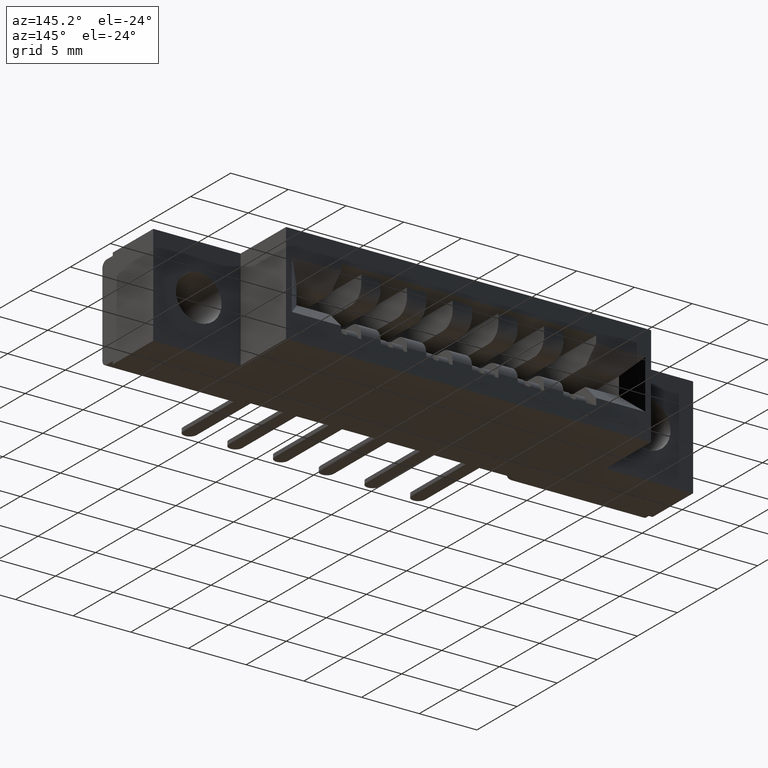
[diagram: clean part render]
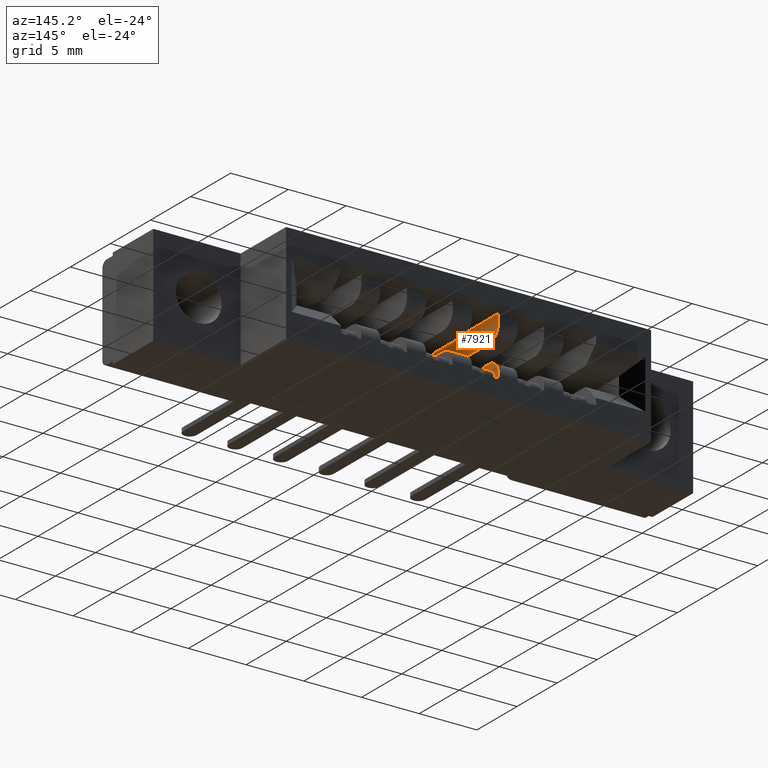
[diagram: same view with one face highlighted and labeled with its STEP entity id]
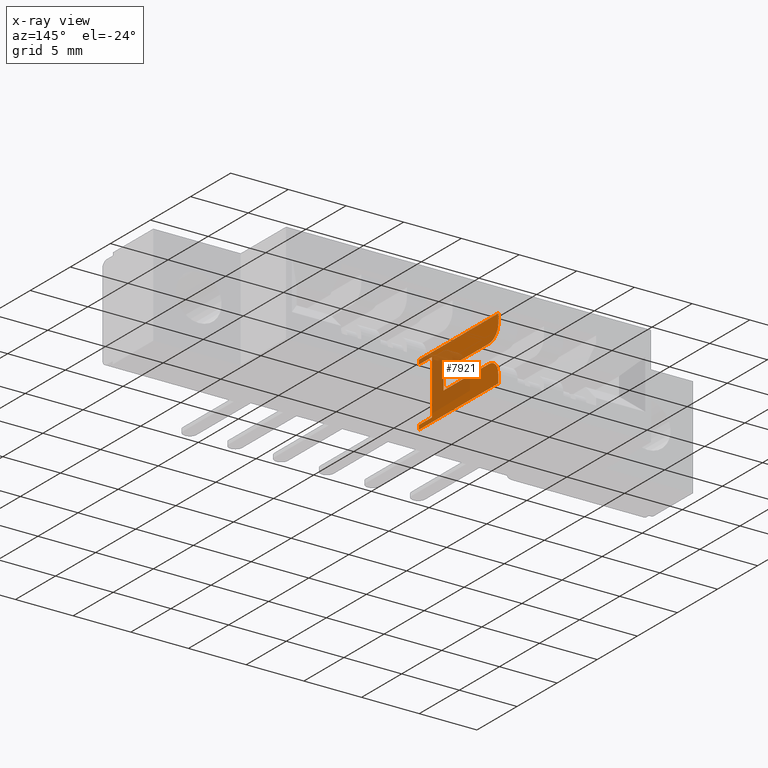
[diagram: x-ray of the same camera — body ghosted, the highlighted face saturated]
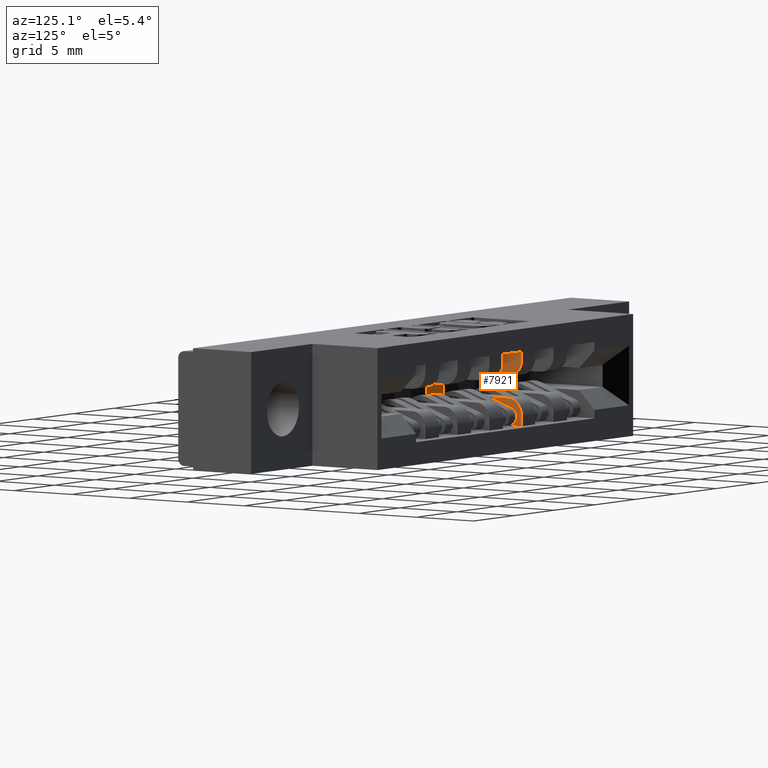
[diagram: same view with one face highlighted and labeled with its STEP entity id]
A machine part, auxiliary view. The second image highlights one B-rep face of the part: STEP entity #7921.
The next image is the same camera in x-ray: the body ghosted, the highlighted face saturated — about 38% of this face is hidden behind the body in this view.
A second angle (auxiliary view) of the same face is appended — the face is thin or edge-on in the first view.
In plain terms, the highlighted planar face has unit normal (-1, 0, 0).
Its self-contained STEP definition (entity closure, byte-faithful):
#77 = LINE ( 'NONE', #8636, #1633 ) ;
#110 = DIRECTION ( 'NONE',  ( 0.0000000000000000000, 0.0000000000000000000, 1.000000000000000000 ) ) ;
#121 = DIRECTION ( 'NONE',  ( 0.0000000000000000000, 0.0000000000000000000, -1.000000000000000000 ) ) ;
#570 = CARTESIAN_POINT ( 'NONE',  ( 0.7980000000000003800, 0.4419999999999999500, -0.2790000000000000800 ) ) ;
#696 = VECTOR ( 'NONE', #8675, 39.37007874015748100 ) ;
#712 = CARTESIAN_POINT ( 'NONE',  ( 0.7980000000000003800, 0.05099999999999999700, -0.2640000000000000700 ) ) ;
#760 = VERTEX_POINT ( 'NONE', #9233 ) ;
#919 = LINE ( 'NONE', #1305, #696 ) ;
#965 = LINE ( 'NONE', #9530, #2696 ) ;
#1112 = AXIS2_PLACEMENT_3D ( 'NONE', #4045, #9270, #8544 ) ;
#1120 = CIRCLE ( 'NONE', #6670, 0.04599999999999996500 ) ;
#1204 = VERTEX_POINT ( 'NONE', #9100 ) ;
#1225 = ORIENTED_EDGE ( 'NONE', *, *, #2338, .F. ) ;
#1280 = DIRECTION ( 'NONE',  ( -0.0000000000000000000, 1.000000000000000000, -0.0000000000000000000 ) ) ;
#1305 = CARTESIAN_POINT ( 'NONE',  ( 0.7980000000000003800, 0.1730000000000000100, -0.2025000000000001000 ) ) ;
#1380 = CARTESIAN_POINT ( 'NONE',  ( 0.7980000000000003800, 0.1160000000000000100, -0.06400000000000008500 ) ) ;
#1475 = LINE ( 'NONE', #6467, #7957 ) ;
#1542 = VERTEX_POINT ( 'NONE', #6177 ) ;
#1570 = CARTESIAN_POINT ( 'NONE',  ( 0.7980000000000003800, 0.1730000000000000100, -0.2025000000000001000 ) ) ;
#1633 = VECTOR ( 'NONE', #5697, 39.37007874015748100 ) ;
#1687 = DIRECTION ( 'NONE',  ( -0.0000000000000000000, 1.000000000000000000, -0.0000000000000000000 ) ) ;
#2171 = DIRECTION ( 'NONE',  ( -1.000000000000000000, -0.0000000000000000000, -0.0000000000000000000 ) ) ;
#2338 = EDGE_CURVE ( 'NONE', #1542, #3293, #9182, .T. ) ;
#2342 = CARTESIAN_POINT ( 'NONE',  ( 0.7980000000000003800, 0.4419999999999999500, -0.2790000000000000800 ) ) ;
#2430 = CARTESIAN_POINT ( 'NONE',  ( 0.7980000000000003800, 0.3959999999999999600, -0.2025000000000000700 ) ) ;
#2584 = EDGE_CURVE ( 'NONE', #9503, #7366, #3157, .T. ) ;
#2696 = VECTOR ( 'NONE', #5195, 39.37007874015748100 ) ;
#2708 = EDGE_CURVE ( 'NONE', #5951, #6478, #77, .T. ) ;
#2748 = EDGE_CURVE ( 'NONE', #5826, #1204, #6263, .T. ) ;
#2780 = CARTESIAN_POINT ( 'NONE',  ( 0.7980000000000003800, 0.05099999999999999700, -0.2790000000000000800 ) ) ;
#2854 = DIRECTION ( 'NONE',  ( 0.0000000000000000000, 0.0000000000000000000, -1.000000000000000000 ) ) ;
#2890 = EDGE_CURVE ( 'NONE', #7366, #5826, #7766, .T. ) ;
#2965 = DIRECTION ( 'NONE',  ( 0.0000000000000000000, 0.0000000000000000000, -1.000000000000000000 ) ) ;
#2985 = EDGE_LOOP ( 'NONE', ( #9402, #3189, #5972, #6174, #6863, #1225, #4574, #5463, #7124, #8073, #6264, #6330, #6678, #4147 ) ) ;
#3127 = DIRECTION ( 'NONE',  ( -0.0000000000000000000, 1.000000000000000000, -0.0000000000000000000 ) ) ;
#3157 = LINE ( 'NONE', #1380, #9055 ) ;
#3189 = ORIENTED_EDGE ( 'NONE', *, *, #2890, .F. ) ;
#3211 = DIRECTION ( 'NONE',  ( 0.0000000000000000000, 1.000000000000000000, 0.0000000000000000000 ) ) ;
#3243 = VECTOR ( 'NONE', #1280, 39.37007874015748100 ) ;
#3255 = FACE_OUTER_BOUND ( 'NONE', #2985, .T. ) ;
#3264 = VECTOR ( 'NONE', #121, 39.37007874015748100 ) ;
#3293 = VERTEX_POINT ( 'NONE', #9487 ) ;
#3364 = LINE ( 'NONE', #5810, #7197 ) ;
#3369 = CARTESIAN_POINT ( 'NONE',  ( 0.7980000000000003800, 0.05099999999999999700, -0.07900000000000007000 ) ) ;
#3486 = LINE ( 'NONE', #4435, #7072 ) ;
#3549 = CARTESIAN_POINT ( 'NONE',  ( 0.7980000000000003800, 0.3959999999999999600, -0.09450000000000011200 ) ) ;
#3706 = LINE ( 'NONE', #8548, #3243 ) ;
#3909 = VECTOR ( 'NONE', #3211, 39.37007874015748100 ) ;
#4045 = CARTESIAN_POINT ( 'NONE',  ( 0.7980000000000003800, 0.1160000000000000100, -0.06400000000000008500 ) ) ;
#4075 = EDGE_CURVE ( 'NONE', #6478, #5249, #3706, .T. ) ;
#4147 = ORIENTED_EDGE ( 'NONE', *, *, #8261, .F. ) ;
#4226 = DIRECTION ( 'NONE',  ( -0.0000000000000000000, -0.0000000000000000000, 1.000000000000000000 ) ) ;
#4369 = VECTOR ( 'NONE', #1687, 39.37007874015748100 ) ;
#4435 = CARTESIAN_POINT ( 'NONE',  ( 0.7980000000000003800, 0.0000000000000000000, -0.07900000000000007000 ) ) ;
#4475 = CARTESIAN_POINT ( 'NONE',  ( 0.7980000000000003800, 0.3959999999999999600, -0.2485000000000000300 ) ) ;
#4574 = ORIENTED_EDGE ( 'NONE', *, *, #5603, .F. ) ;
#5055 = DIRECTION ( 'NONE',  ( -0.0000000000000000000, 1.000000000000000000, -0.0000000000000000000 ) ) ;
#5195 = DIRECTION ( 'NONE',  ( 0.0000000000000000000, -1.000000000000000000, 0.0000000000000000000 ) ) ;
#5249 = VERTEX_POINT ( 'NONE', #570 ) ;
#5365 = VERTEX_POINT ( 'NONE', #6525 ) ;
#5463 = ORIENTED_EDGE ( 'NONE', *, *, #2708, .T. ) ;
#5570 = AXIS2_PLACEMENT_3D ( 'NONE', #3549, #9463, #9430 ) ;
#5583 = EDGE_CURVE ( 'NONE', #7687, #6101, #6915, .T. ) ;
#5603 = EDGE_CURVE ( 'NONE', #5951, #1542, #6339, .T. ) ;
#5697 = DIRECTION ( 'NONE',  ( 0.0000000000000000000, 0.0000000000000000000, -1.000000000000000000 ) ) ;
#5806 = EDGE_CURVE ( 'NONE', #760, #7687, #919, .T. ) ;
#5810 = CARTESIAN_POINT ( 'NONE',  ( 0.7980000000000003800, 0.05099999999999999700, -0.06400000000000008500 ) ) ;
#5826 = VERTEX_POINT ( 'NONE', #7939 ) ;
#5951 = VERTEX_POINT ( 'NONE', #712 ) ;
#5972 = ORIENTED_EDGE ( 'NONE', *, *, #2584, .F. ) ;
#6101 = VERTEX_POINT ( 'NONE', #2430 ) ;
#6119 = CARTESIAN_POINT ( 'NONE',  ( 0.7980000000000003800, 0.0000000000000000000, -0.2640000000000000700 ) ) ;
#6174 = ORIENTED_EDGE ( 'NONE', *, *, #8813, .T. ) ;
#6177 = CARTESIAN_POINT ( 'NONE',  ( 0.7980000000000003800, 0.1160000000000000100, -0.2640000000000001200 ) ) ;
#6186 = EDGE_CURVE ( 'NONE', #5365, #5249, #1475, .T. ) ;
#6222 = CARTESIAN_POINT ( 'NONE',  ( 0.7980000000000003800, 0.4419999999999999500, -0.06399999999999994600 ) ) ;
#6263 = CIRCLE ( 'NONE', #5570, 0.04599999999999996500 ) ;
#6264 = ORIENTED_EDGE ( 'NONE', *, *, #6652, .F. ) ;
#6330 = ORIENTED_EDGE ( 'NONE', *, *, #5583, .F. ) ;
#6339 = LINE ( 'NONE', #6119, #4369 ) ;
#6467 = CARTESIAN_POINT ( 'NONE',  ( 0.7980000000000003800, 0.4419999999999999500, -0.2790000000000000800 ) ) ;
#6478 = VERTEX_POINT ( 'NONE', #2780 ) ;
#6525 = CARTESIAN_POINT ( 'NONE',  ( 0.7980000000000003800, 0.4419999999999999500, -0.2485000000000000300 ) ) ;
#6652 = EDGE_CURVE ( 'NONE', #6101, #5365, #1120, .T. ) ;
#6670 = AXIS2_PLACEMENT_3D ( 'NONE', #4475, #2171, #110 ) ;
#6678 = ORIENTED_EDGE ( 'NONE', *, *, #5806, .F. ) ;
#6863 = ORIENTED_EDGE ( 'NONE', *, *, #8827, .T. ) ;
#6915 = LINE ( 'NONE', #8322, #3909 ) ;
#6932 = CARTESIAN_POINT ( 'NONE',  ( 0.7980000000000003800, 0.05099999999999999700, -0.06399999999999994600 ) ) ;
#6946 = VERTEX_POINT ( 'NONE', #3369 ) ;
#7072 = VECTOR ( 'NONE', #5055, 39.37007874015748100 ) ;
#7124 = ORIENTED_EDGE ( 'NONE', *, *, #4075, .T. ) ;
#7197 = VECTOR ( 'NONE', #2965, 39.37007874015748100 ) ;
#7209 = CARTESIAN_POINT ( 'NONE',  ( 0.7980000000000003800, 0.1160000000000000100, -0.06400000000000008500 ) ) ;
#7366 = VERTEX_POINT ( 'NONE', #6222 ) ;
#7687 = VERTEX_POINT ( 'NONE', #1570 ) ;
#7736 = PLANE ( 'NONE',  #1112 ) ;
#7766 = LINE ( 'NONE', #2342, #3264 ) ;
#7921 = ADVANCED_FACE ( 'NONE', ( #3255 ), #7736, .F. ) ;
#7939 = CARTESIAN_POINT ( 'NONE',  ( 0.7980000000000003800, 0.4419999999999999500, -0.09450000000000011200 ) ) ;
#7957 = VECTOR ( 'NONE', #2854, 39.37007874015748100 ) ;
#8073 = ORIENTED_EDGE ( 'NONE', *, *, #6186, .F. ) ;
#8261 = EDGE_CURVE ( 'NONE', #1204, #760, #965, .T. ) ;
#8322 = CARTESIAN_POINT ( 'NONE',  ( 0.7980000000000003800, 0.1730000000000000100, -0.2025000000000000700 ) ) ;
#8544 = DIRECTION ( 'NONE',  ( -0.0000000000000000000, 0.0000000000000000000, 1.000000000000000000 ) ) ;
#8548 = CARTESIAN_POINT ( 'NONE',  ( 0.7980000000000003800, 0.1160000000000000100, -0.2790000000000000800 ) ) ;
#8636 = CARTESIAN_POINT ( 'NONE',  ( 0.7980000000000003800, 0.05099999999999999700, -0.06400000000000008500 ) ) ;
#8675 = DIRECTION ( 'NONE',  ( 0.0000000000000000000, 0.0000000000000000000, -1.000000000000000000 ) ) ;
#8719 = VECTOR ( 'NONE', #4226, 39.37007874015748100 ) ;
#8813 = EDGE_CURVE ( 'NONE', #9503, #6946, #3364, .T. ) ;
#8827 = EDGE_CURVE ( 'NONE', #6946, #3293, #3486, .T. ) ;
#9055 = VECTOR ( 'NONE', #3127, 39.37007874015748100 ) ;
#9100 = CARTESIAN_POINT ( 'NONE',  ( 0.7980000000000003800, 0.3960000000000000200, -0.1405000000000000400 ) ) ;
#9182 = LINE ( 'NONE', #7209, #8719 ) ;
#9233 = CARTESIAN_POINT ( 'NONE',  ( 0.7980000000000003800, 0.1730000000000000100, -0.1405000000000000700 ) ) ;
#9270 = DIRECTION ( 'NONE',  ( -1.000000000000000000, 0.0000000000000000000, -0.0000000000000000000 ) ) ;
#9402 = ORIENTED_EDGE ( 'NONE', *, *, #2748, .F. ) ;
#9430 = DIRECTION ( 'NONE',  ( 0.0000000000000000000, 0.0000000000000000000, 1.000000000000000000 ) ) ;
#9463 = DIRECTION ( 'NONE',  ( -1.000000000000000000, -0.0000000000000000000, -0.0000000000000000000 ) ) ;
#9487 = CARTESIAN_POINT ( 'NONE',  ( 0.7980000000000003800, 0.1160000000000000100, -0.07900000000000007000 ) ) ;
#9503 = VERTEX_POINT ( 'NONE', #6932 ) ;
#9530 = CARTESIAN_POINT ( 'NONE',  ( 0.7980000000000003800, 0.1730000000000000100, -0.1405000000000000700 ) ) ;